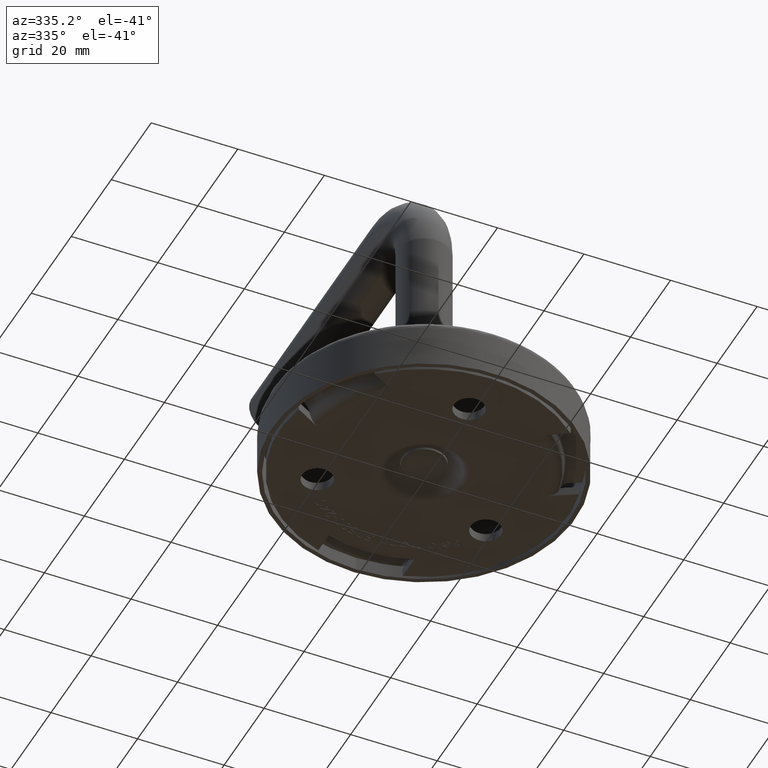
[diagram: clean part render]
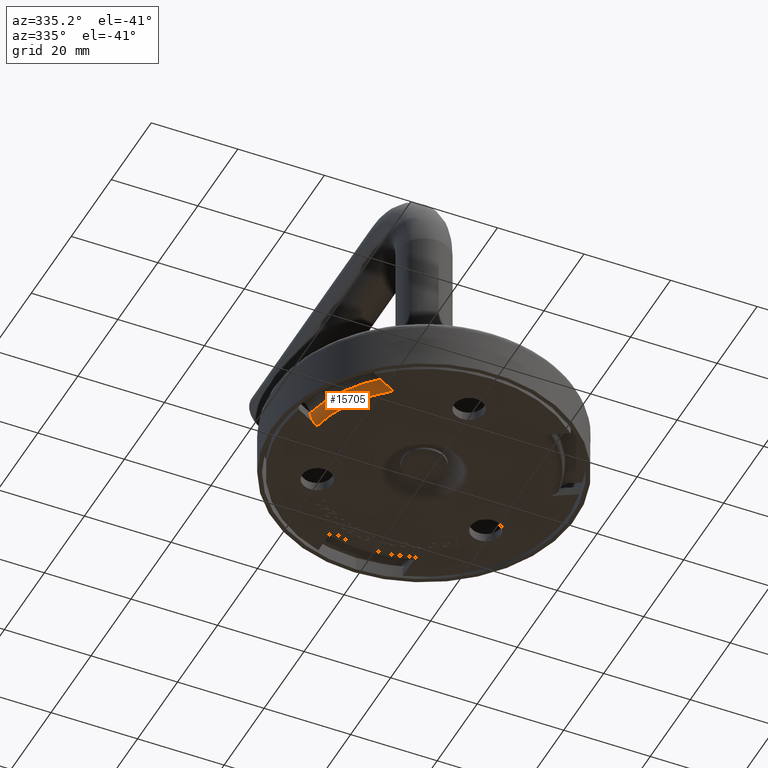
[diagram: same view with one face highlighted and labeled with its STEP entity id]
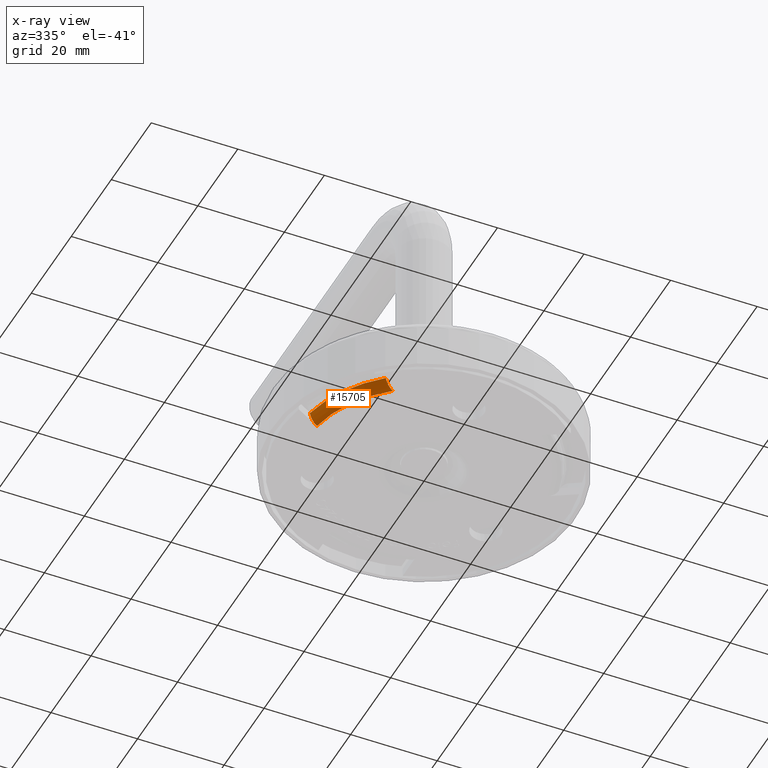
[diagram: x-ray of the same camera — body ghosted, the highlighted face saturated]
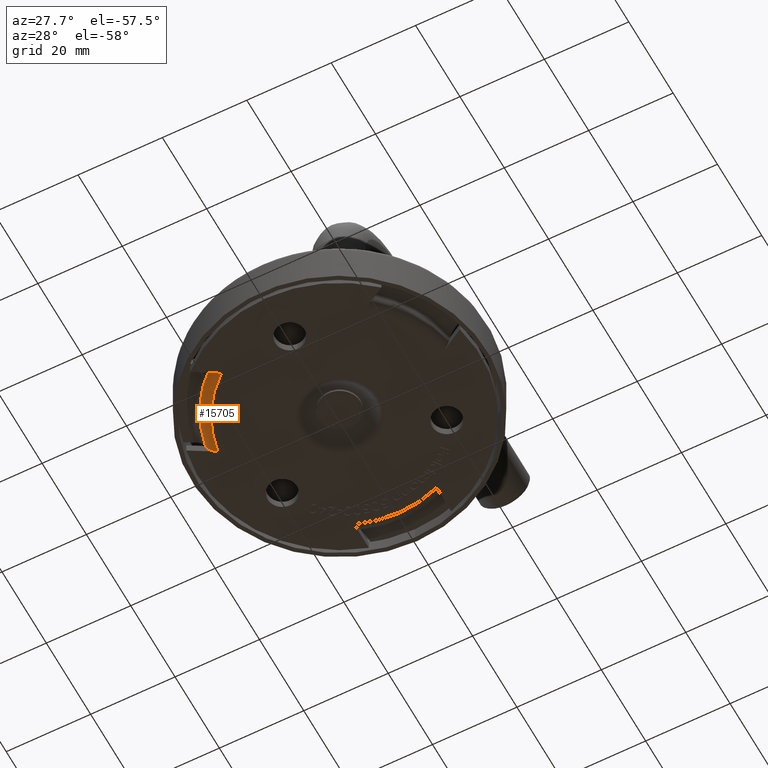
[diagram: same view with one face highlighted and labeled with its STEP entity id]
A machine part, auxiliary view. The second image highlights one B-rep face of the part: STEP entity #15705.
The next image is the same camera in x-ray: the body ghosted, the highlighted face saturated — about 0% of this face is hidden behind the body in this view.
A second angle (auxiliary view) of the same face is appended — the face is thin or edge-on in the first view.
In plain terms, the highlighted toroidal blend (fillet) surface has major radius 27 mm and minor (blend) radius 2.5 mm.
Its self-contained STEP definition (entity closure, byte-faithful):
#596 = AXIS2_PLACEMENT_3D ( 'NONE', #15851, #8325, #15698 ) ;
#877 = CARTESIAN_POINT ( 'NONE',  ( 17.04998553569138100, -21.10214398790811800, 8.930120132136316400E-014 ) ) ;
#887 = CARTESIAN_POINT ( 'NONE',  ( 28.70101041505554600, -5.312205839949085000, -1.261679151299215600 ) ) ;
#905 = VERTEX_POINT ( 'NONE', #12188 ) ;
#931 = CARTESIAN_POINT ( 'NONE',  ( 17.17123916071017900, -21.17214980095293700, -0.01020273115359544300 ) ) ;
#1044 = EDGE_CURVE ( 'NONE', #905, #13292, #3410, .T. ) ;
#1370 = CARTESIAN_POINT ( 'NONE',  ( 16.92988764015956000, -21.03280543559377600, -4.425272562905159400E-029 ) ) ;
#1640 = VERTEX_POINT ( 'NONE', #8206 ) ;
#2131 = CARTESIAN_POINT ( 'NONE',  ( 18.08372789324875600, -21.69897541631659300, -0.3289154268042655500 ) ) ;
#2494 = CARTESIAN_POINT ( 'NONE',  ( 6.171406851237423000E-030, 1.227116963677100800E-030, -1.777777777777729300 ) ) ;
#3281 = CARTESIAN_POINT ( 'NONE',  ( 27.50313457422441100, -4.620611900789478800, -0.1596169034017018700 ) ) ;
#3410 = B_SPLINE_CURVE_WITH_KNOTS ( 'NONE', 3,
 ( #5977, #15753, #6982, #4579, #5753, #3281, #14568, #9388, #9448, #11870, #14351, #887, #13213, #5813 ),
 .UNSPECIFIED., .F., .F.,
 ( 4, 2, 2, 2, 2, 2, 4 ),
 ( 0.003333664579547390200, 0.003747166311687105900, 0.004160668043826821700, 0.004574169775966537900, 0.004987671508106253200, 0.005814674972385686400, 0.006641678436665118800 ),
 .UNSPECIFIED. ) ;
#4096 = EDGE_CURVE ( 'NONE', #11024, #1640, #13959, .T. ) ;
#4321 = EDGE_CURVE ( 'NONE', #905, #11024, #7665, .T. ) ;
#4579 = CARTESIAN_POINT ( 'NONE',  ( 27.15789152557941200, -4.421285733718443500, -0.05028959223706736000 ) ) ;
#4627 = CARTESIAN_POINT ( 'NONE',  ( 19.06535932879885200, -22.26572058987644100, -1.511171601879557100 ) ) ;
#5381 = FACE_OUTER_BOUND ( 'NONE', #15718, .T. ) ;
#5753 = CARTESIAN_POINT ( 'NONE',  ( 27.27428289049765900, -4.488484319585334800, -0.08011036018030683000 ) ) ;
#5813 = CARTESIAN_POINT ( 'NONE',  ( 28.88921220495685900, -5.420864194010468900, -1.777777777777731000 ) ) ;
#5977 = CARTESIAN_POINT ( 'NONE',  ( 26.67988764015956700, -4.145310061797502500, -8.975568435535965500E-029 ) ) ;
#6982 = CARTESIAN_POINT ( 'NONE',  ( 26.92123916071010800, -4.284654427156783500, -0.01020273115361028900 ) ) ;
#7027 = CARTESIAN_POINT ( 'NONE',  ( 17.52428289049774400, -21.37597969338149900, -0.08011036018027641000 ) ) ;
#7493 = DIRECTION ( 'NONE',  ( 3.471416353821137800E-030, 6.902532920683880400E-031, -1.000000000000000000 ) ) ;
#7665 = CIRCLE ( 'NONE', #596, 26.99999999999966200 ) ;
#8206 = CARTESIAN_POINT ( 'NONE',  ( 19.13921220495684800, -22.30835956780674700, -1.777777777777730600 ) ) ;
#8256 = CARTESIAN_POINT ( 'NONE',  ( 17.86655907746433400, -21.57359294206386100, -0.2098728989195281500 ) ) ;
#8315 = CARTESIAN_POINT ( 'NONE',  ( 18.18730469056821900, -21.75877550813078200, -0.3973551638352295100 ) ) ;
#8325 = DIRECTION ( 'NONE',  ( 3.471416353821137800E-030, 6.902532920683880400E-031, -1.000000000000000000 ) ) ;
#8412 = EDGE_CURVE ( 'NONE', #13292, #1640, #15906, .T. ) ;
#8854 = ORIENTED_EDGE ( 'NONE', *, *, #4321, .T. ) ;
#9388 = CARTESIAN_POINT ( 'NONE',  ( 27.83372789324865000, -4.811480042520409000, -0.3289154268043120200 ) ) ;
#9448 = CARTESIAN_POINT ( 'NONE',  ( 27.93730469056809400, -4.871280134334595500, -0.3973551638352780200 ) ) ;
#9555 = CARTESIAN_POINT ( 'NONE',  ( 18.66206418050952100, -22.03287802744872400, -0.8236414083473561100 ) ) ;
#9898 = AXIS2_PLACEMENT_3D ( 'NONE', #13463, #14816, #14875 ) ;
#10067 = DIRECTION ( 'NONE',  ( -1.000000000000000000, -2.761013168273535000E-030, 0.0000000000000000000 ) ) ;
#10463 = CARTESIAN_POINT ( 'NONE',  ( 16.92988764015956000, -21.03280543559377600, -4.425272562905159400E-029 ) ) ;
#10474 = CARTESIAN_POINT ( 'NONE',  ( 28.88921220495685900, -5.420864194010468900, -1.777777777777731000 ) ) ;
#10734 = CARTESIAN_POINT ( 'NONE',  ( 18.95101041505571300, -22.19970121374528900, -1.261679151299159200 ) ) ;
#11024 = VERTEX_POINT ( 'NONE', #1370 ) ;
#11870 = CARTESIAN_POINT ( 'NONE',  ( 28.23297647628109900, -5.041986319407771000, -0.6294935080456970400 ) ) ;
#11973 = CARTESIAN_POINT ( 'NONE',  ( 18.48297647628122000, -21.92948169320396800, -0.6294935080456346400 ) ) ;
#12188 = CARTESIAN_POINT ( 'NONE',  ( 26.67988764015956700, -4.145310061797502500, -8.975568435535965500E-029 ) ) ;
#13204 = CARTESIAN_POINT ( 'NONE',  ( 19.13921220495684800, -22.30835956780674700, -1.777777777777730600 ) ) ;
#13213 = CARTESIAN_POINT ( 'NONE',  ( 28.81535932879868200, -5.378225216080220000, -1.511171601879601300 ) ) ;
#13292 = VERTEX_POINT ( 'NONE', #10474 ) ;
#13463 = CARTESIAN_POINT ( 'NONE',  ( 8.678540884552658500E-030, 1.725633230170932500E-030, -2.499999999999951600 ) ) ;
#13573 = ORIENTED_EDGE ( 'NONE', *, *, #1044, .F. ) ;
#13582 = ORIENTED_EDGE ( 'NONE', *, *, #8412, .F. ) ;
#13753 = ORIENTED_EDGE ( 'NONE', *, *, #4096, .T. ) ;
#13959 = B_SPLINE_CURVE_WITH_KNOTS ( 'NONE', 3,
 ( #10463, #877, #931, #15687, #7027, #15636, #8256, #2131, #8315, #11973, #9555, #10734, #4627, #13204 ),
 .UNSPECIFIED., .F., .F.,
 ( 4, 2, 2, 2, 2, 2, 4 ),
 ( 0.003333664579546486800, 0.003747166311686218600, 0.004160668043825950900, 0.004574169775965682700, 0.004987671508105414500, 0.005814674972384878100, 0.006641678436664341700 ),
 .UNSPECIFIED. ) ;
#14351 = CARTESIAN_POINT ( 'NONE',  ( 28.41206418050936500, -5.145382653652514000, -0.8236414083474031800 ) ) ;
#14568 = CARTESIAN_POINT ( 'NONE',  ( 27.61655907746423100, -4.686097568267685500, -0.2098728989195713700 ) ) ;
#14804 = TOROIDAL_SURFACE ( 'NONE', #9898, 27.00000000000000000, 2.500000000000000000 ) ;
#14816 = DIRECTION ( 'NONE',  ( 3.471416353821137800E-030, 6.902532920683880400E-031, -1.000000000000000000 ) ) ;
#14875 = DIRECTION ( 'NONE',  ( -1.000000000000000000, -2.761013168273535000E-030, -3.471416353821137800E-030 ) ) ;
#15581 = AXIS2_PLACEMENT_3D ( 'NONE', #2494, #7493, #10067 ) ;
#15636 = CARTESIAN_POINT ( 'NONE',  ( 17.75313457422450700, -21.50810727458564700, -0.1596169034016586300 ) ) ;
#15687 = CARTESIAN_POINT ( 'NONE',  ( 17.40789152557949400, -21.30878110751460500, -0.05028959223704110300 ) ) ;
#15698 = DIRECTION ( 'NONE',  ( -1.000000000000000000, -2.761013168273535000E-030, 3.471416353821110500E-030 ) ) ;
#15705 = ADVANCED_FACE ( 'NONE', ( #5381 ), #14804, .T. ) ;
#15718 = EDGE_LOOP ( 'NONE', ( #13573, #8854, #13753, #13582 ) ) ;
#15753 = CARTESIAN_POINT ( 'NONE',  ( 26.79998553569132000, -4.214648614111968800, 8.211433852214724000E-014 ) ) ;
#15851 = CARTESIAN_POINT ( 'NONE',  ( 0.0000000000000000000, 0.0000000000000000000, 0.0000000000000000000 ) ) ;
#15906 = CIRCLE ( 'NONE', #15581, 29.39340658094830500 ) ;